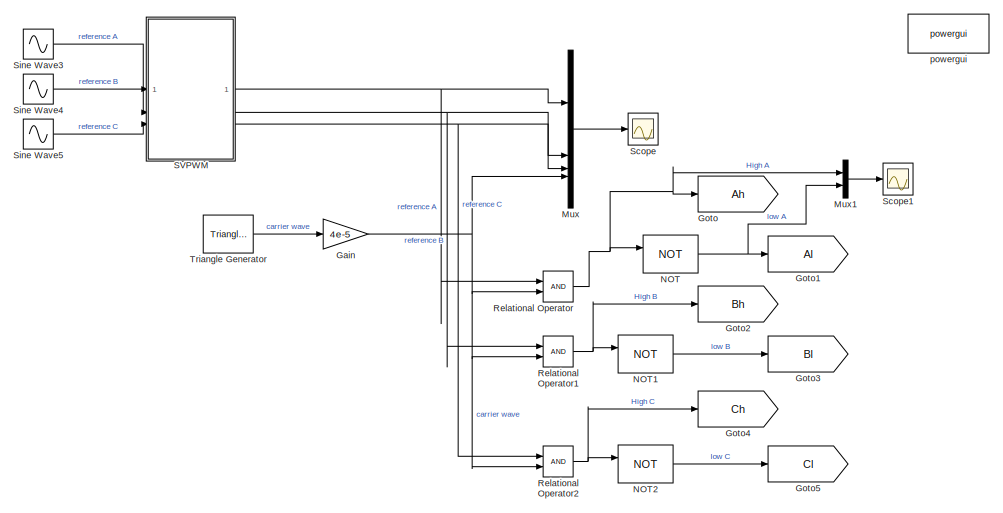
[diagram: root canvas - part 1/2, left side, full height]
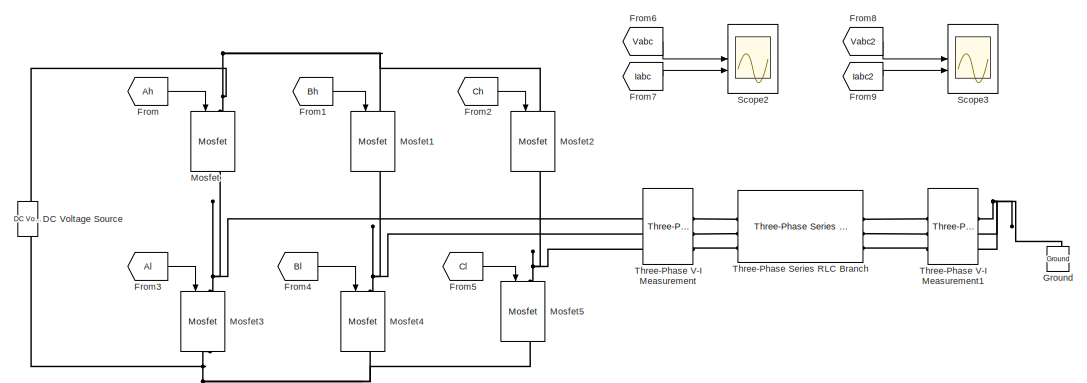
[diagram: root canvas - part 2/2, middle right region]
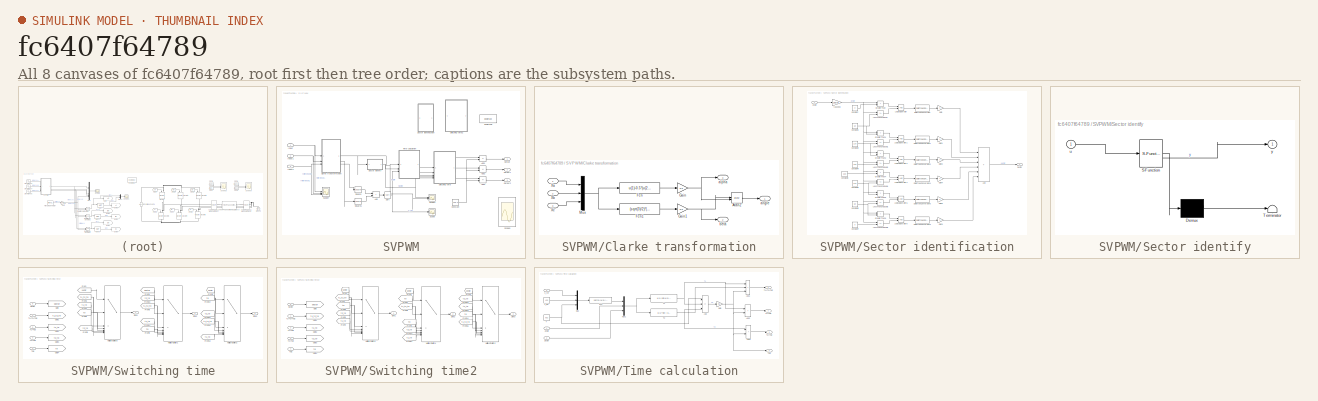
[diagram: thumbnail index - all 8 canvases of the model, root first then tree order]
MODEL slx_fc6407f64789
KIND model
CONFIG AbsTol = auto
CONFIG EnableMultiTasking = off
CONFIG FixedStep = auto
CONFIG MaxStep = 0.0001
CONFIG MinStep = auto
CONFIG RelTol = 1e-3
CONFIG SampleTimeConstraint = Unconstrained
CONFIG SolverName = VariableStepAuto
CONFIG StartTime = 0.0
CONFIG StopTime = 1
BLOCK [Reference] DC Voltage Source  REF=spsDCVoltageSourceLib/DC Voltage Source
  LibrarySourceBlock = sps_lib/Sources/DC Voltage Source
  SourceBlock = spsDCVoltageSourceLib/DC Voltage Source
  SourceType = DC Voltage Source
BLOCK [From] From
  GotoTag = Ah
BLOCK [From] From1
  GotoTag = Bh
BLOCK [From] From2
  GotoTag = Ch
BLOCK [From] From3
  GotoTag = Al
BLOCK [From] From4
  GotoTag = Bl
BLOCK [From] From5
  GotoTag = Cl
BLOCK [From] From6
  GotoTag = Vabc
  TagVisibility = global
BLOCK [From] From7
  GotoTag = Iabc
  TagVisibility = global
BLOCK [From] From8
  GotoTag = Vabc2
  TagVisibility = global
BLOCK [From] From9
  GotoTag = Iabc2
  TagVisibility = global
BLOCK [Gain] Gain
  Gain = 4e-5
BLOCK [Goto] Goto
  GotoTag = Ah
BLOCK [Goto] Goto1
  GotoTag = Al
BLOCK [Goto] Goto2
  GotoTag = Bh
BLOCK [Goto] Goto3
  GotoTag = Bl
BLOCK [Goto] Goto4
  GotoTag = Ch
BLOCK [Goto] Goto5
  GotoTag = Cl
BLOCK [Reference] Ground  REF=spsGroundLib/Ground
  LibrarySourceBlock = sps_lib/Utilities/Ground
  NameLocation = right
  SourceBlock = spsGroundLib/Ground
  SourceType = Ground
BLOCK [Reference] Mosfet  REF=spsMosfetLib/Mosfet
  LibrarySourceBlock = sps_lib/Power Electronics/Mosfet
  NameLocation = left
  SourceBlock = spsMosfetLib/Mosfet
  SourceType = Mosfet
BLOCK [Reference] Mosfet1  REF=spsMosfetLib/Mosfet
  LibrarySourceBlock = sps_lib/Power Electronics/Mosfet
  NameLocation = left
  SourceBlock = spsMosfetLib/Mosfet
  SourceType = Mosfet
BLOCK [Reference] Mosfet2  REF=spsMosfetLib/Mosfet
  LibrarySourceBlock = sps_lib/Power Electronics/Mosfet
  NameLocation = left
  SourceBlock = spsMosfetLib/Mosfet
  SourceType = Mosfet
BLOCK [Reference] Mosfet3  REF=spsMosfetLib/Mosfet
  LibrarySourceBlock = sps_lib/Power Electronics/Mosfet
  NameLocation = left
  SourceBlock = spsMosfetLib/Mosfet
  SourceType = Mosfet
BLOCK [Reference] Mosfet4  REF=spsMosfetLib/Mosfet
  LibrarySourceBlock = sps_lib/Power Electronics/Mosfet
  NameLocation = left
  SourceBlock = spsMosfetLib/Mosfet
  SourceType = Mosfet
BLOCK [Reference] Mosfet5  REF=spsMosfetLib/Mosfet
  LibrarySourceBlock = sps_lib/Power Electronics/Mosfet
  NameLocation = left
  SourceBlock = spsMosfetLib/Mosfet
  SourceType = Mosfet
BLOCK [Mux] Mux
  DisplayOption = bar
BLOCK [Mux] Mux1
  DisplayOption = bar
  Inputs = 2
BLOCK [Logic] NOT
  AllPortsSameDT = off
  Operator = NOT
  OutDataTypeStr = boolean
BLOCK [Logic] NOT1
  AllPortsSameDT = off
  Operator = NOT
  OutDataTypeStr = boolean
BLOCK [Logic] NOT2
  AllPortsSameDT = off
  Operator = NOT
  OutDataTypeStr = boolean
BLOCK [RelationalOperator] Relational Operator
  InputSameDT = off
  OutDataTypeStr = boolean
  RndMeth = Simplest
BLOCK [RelationalOperator] Relational Operator1
  InputSameDT = off
  OutDataTypeStr = boolean
  RndMeth = Simplest
BLOCK [RelationalOperator] Relational Operator2
  InputSameDT = off
  OutDataTypeStr = boolean
  RndMeth = Simplest
BLOCK [SubSystem] SVPWM
BLOCK [Sum] SVPWM/Add
  IconShape = rectangular
BLOCK [Sum] SVPWM/Add1
  IconShape = rectangular
  Inputs = +-
BLOCK [Sum] SVPWM/Add2
  IconShape = rectangular
  Inputs = +-
BLOCK [Sum] SVPWM/Add3
  IconShape = rectangular
  Inputs = +-
BLOCK [SubSystem] SVPWM/Clarke transformation
  NameLocation = top
BLOCK [Trigonometry] SVPWM/Clarke transformation/Atan2
  Operator = atan2
BLOCK [Fcn] SVPWM/Clarke transformation/Fcn
  Expr = u(1)-0.5*(u(2)+u(3))
BLOCK [Fcn] SVPWM/Clarke transformation/Fcn1
  Expr = (sqrt(3)/2)*(u(2)-u(3))
BLOCK [Gain] SVPWM/Clarke transformation/Gain
  Gain = 2/3
BLOCK [Gain] SVPWM/Clarke transformation/Gain1
  Gain = 2/3
BLOCK [Mux] SVPWM/Clarke transformation/Mux
  DisplayOption = bar
  Inputs = 3
BLOCK [Inport] SVPWM/Clarke transformation/Xa
BLOCK [Inport] SVPWM/Clarke transformation/Xb
  Port = 2
BLOCK [Inport] SVPWM/Clarke transformation/Xc
  Port = 3
BLOCK [Outport] SVPWM/Clarke transformation/alpha
  Port = 3
BLOCK [Outport] SVPWM/Clarke transformation/angle
BLOCK [Outport] SVPWM/Clarke transformation/beta
  Port = 2
BLOCK [Constant] SVPWM/Constant
  Value = 10e-3
BLOCK [Inport] SVPWM/Input
BLOCK [Inport] SVPWM/Input1
  Port = 2
BLOCK [Inport] SVPWM/Input2
  Port = 3
BLOCK [Outport] SVPWM/Output
BLOCK [Outport] SVPWM/Output1
  Port = 2
BLOCK [Outport] SVPWM/Output2
  Port = 3
BLOCK [Scope] SVPWM/Scope
  Floating = off
  NumInputPorts = 1
  ScopeSpecificationString = Simulink.scopes.TimeScopeBlockCfg('CurrentConfiguration', extmgr.ConfigurationSet(extmgr.Configuration('Core','General UI',true),extmgr.Configuration('Core','Source UI',true),extmgr.Configuration('Sources','WiredSimulink',true,'DataLoggingVariableName','ScopeData1'),extmgr.Configuration('Visuals','Time Domain',true,'SerializedDisplays',{struct('MinYLimReal','0.999999999999965','MaxYLimReal','1.000...<+1511ch>
BLOCK [Scope] SVPWM/Scope4
  Floating = off
  NumInputPorts = 2
  ScopeSpecificationString = Simulink.scopes.TimeScopeBlockCfg('CurrentConfiguration', extmgr.ConfigurationSet(extmgr.Configuration('Core','General UI',true),extmgr.Configuration('Core','Source UI',true),extmgr.Configuration('Sources','WiredSimulink',true,'DataLoggingVariableName','ScopeData1'),extmgr.Configuration('Visuals','Time Domain',true,'SerializedDisplays',{struct('MinYLimReal','0.375','MaxYLimReal','6.625','YLabelRea...<+2073ch>
BLOCK [Scope] SVPWM/Scope5
  Floating = off
  NumInputPorts = 3
  ScopeSpecificationString = Simulink.scopes.TimeScopeBlockCfg('CurrentConfiguration', extmgr.ConfigurationSet(extmgr.Configuration('Core','General UI',true),extmgr.Configuration('Core','Source UI',true),extmgr.Configuration('Sources','WiredSimulink',true,'DataLoggingVariableName','ScopeData2'),extmgr.Configuration('Visuals','Time Domain',true,'SerializedDisplays',{struct('MinYLimReal','0.00995','MaxYLimReal','0.01005','YLabe...<+1662ch>
BLOCK [Scope] SVPWM/Scope7
  Floating = off
  NumInputPorts = 3
  ScopeSpecificationString = Simulink.scopes.TimeScopeBlockCfg('CurrentConfiguration', extmgr.ConfigurationSet(extmgr.Configuration('Core','General UI',true),extmgr.Configuration('Core','Source UI',true),extmgr.Configuration('Sources','WiredSimulink',true,'DataLoggingVariableName','ScopeData1'),extmgr.Configuration('Visuals','Time Domain',true,'SerializedDisplays',{struct('MinYLimReal','-1.25','MaxYLimReal','1.25','YLabelReal...<+1451ch>
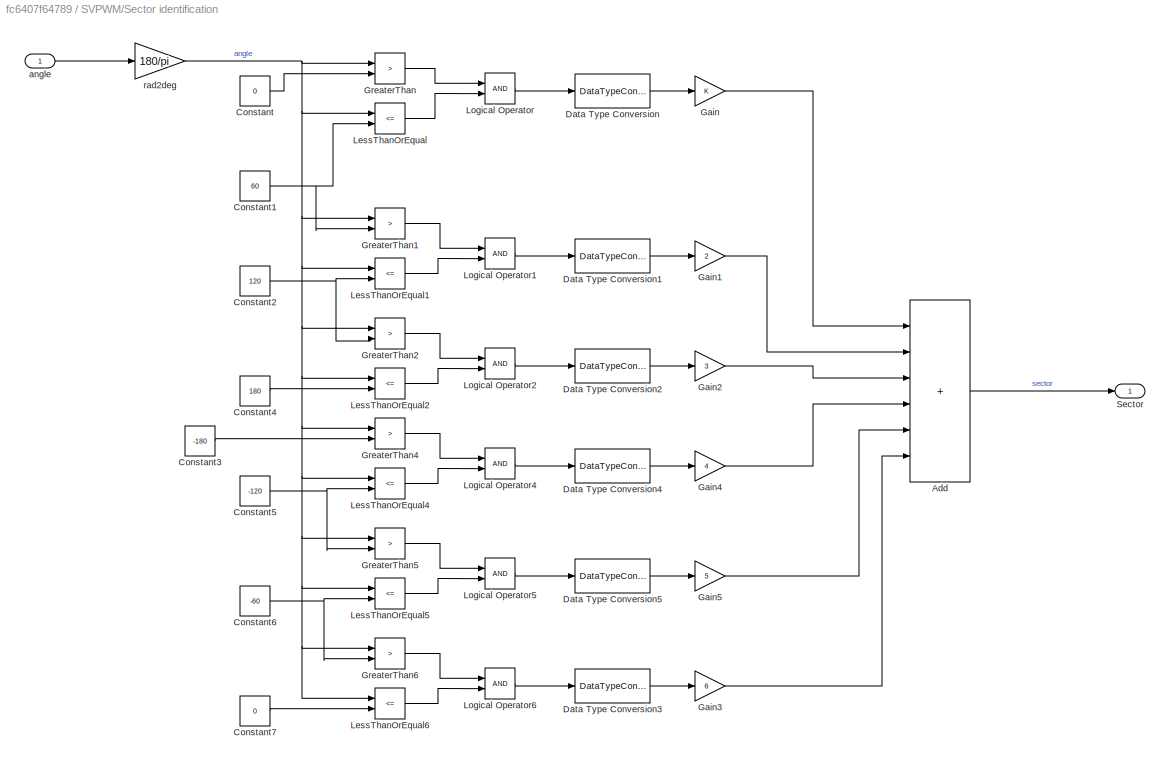
BLOCK [SubSystem] SVPWM/Sector identification
  Commented = on
BLOCK [Sum] SVPWM/Sector identification/Add
  IconShape = rectangular
  Inputs = ++++++
BLOCK [Constant] SVPWM/Sector identification/Constant
  Value = 0
BLOCK [Constant] SVPWM/Sector identification/Constant1
  Value = 60
BLOCK [Constant] SVPWM/Sector identification/Constant2
  Value = 120
BLOCK [Constant] SVPWM/Sector identification/Constant3
  Value = -180
BLOCK [Constant] SVPWM/Sector identification/Constant4
  Value = 180
BLOCK [Constant] SVPWM/Sector identification/Constant5
  Value = -120
BLOCK [Constant] SVPWM/Sector identification/Constant6
  Value = -60
BLOCK [Constant] SVPWM/Sector identification/Constant7
  Value = 0
BLOCK [DataTypeConversion] SVPWM/Sector identification/Data Type Conversion
  RndMeth = Floor
  SaturateOnIntegerOverflow = off
BLOCK [DataTypeConversion] SVPWM/Sector identification/Data Type Conversion1
  RndMeth = Floor
  SaturateOnIntegerOverflow = off
BLOCK [DataTypeConversion] SVPWM/Sector identification/Data Type Conversion2
  RndMeth = Floor
  SaturateOnIntegerOverflow = off
BLOCK [DataTypeConversion] SVPWM/Sector identification/Data Type Conversion3
  RndMeth = Floor
  SaturateOnIntegerOverflow = off
BLOCK [DataTypeConversion] SVPWM/Sector identification/Data Type Conversion4
  RndMeth = Floor
  SaturateOnIntegerOverflow = off
BLOCK [DataTypeConversion] SVPWM/Sector identification/Data Type Conversion5
  RndMeth = Floor
  SaturateOnIntegerOverflow = off
BLOCK [Gain] SVPWM/Sector identification/Gain
BLOCK [Gain] SVPWM/Sector identification/Gain1
  Gain = 2
BLOCK [Gain] SVPWM/Sector identification/Gain2
  Gain = 3
BLOCK [Gain] SVPWM/Sector identification/Gain3
  Gain = 6
BLOCK [Gain] SVPWM/Sector identification/Gain4
  Gain = 4
BLOCK [Gain] SVPWM/Sector identification/Gain5
  Gain = 5
BLOCK [RelationalOperator] SVPWM/Sector identification/GreaterThan
  InputSameDT = off
  Operator = >
  OutDataTypeStr = boolean
  RndMeth = Simplest
BLOCK [RelationalOperator] SVPWM/Sector identification/GreaterThan1
  InputSameDT = off
  Operator = >
  OutDataTypeStr = boolean
  RndMeth = Simplest
BLOCK [RelationalOperator] SVPWM/Sector identification/GreaterThan2
  InputSameDT = off
  Operator = >
  OutDataTypeStr = boolean
  RndMeth = Simplest
BLOCK [RelationalOperator] SVPWM/Sector identification/GreaterThan4
  InputSameDT = off
  Operator = >
  OutDataTypeStr = boolean
  RndMeth = Simplest
BLOCK [RelationalOperator] SVPWM/Sector identification/GreaterThan5
  InputSameDT = off
  Operator = >
  OutDataTypeStr = boolean
  RndMeth = Simplest
BLOCK [RelationalOperator] SVPWM/Sector identification/GreaterThan6
  InputSameDT = off
  Operator = >
  OutDataTypeStr = boolean
  RndMeth = Simplest
BLOCK [RelationalOperator] SVPWM/Sector identification/LessThanOrEqual
  InputSameDT = off
  Operator = <=
  OutDataTypeStr = boolean
  RndMeth = Simplest
BLOCK [RelationalOperator] SVPWM/Sector identification/LessThanOrEqual1
  InputSameDT = off
  Operator = <=
  OutDataTypeStr = boolean
  RndMeth = Simplest
BLOCK [RelationalOperator] SVPWM/Sector identification/LessThanOrEqual2
  InputSameDT = off
  Operator = <=
  OutDataTypeStr = boolean
  RndMeth = Simplest
BLOCK [RelationalOperator] SVPWM/Sector identification/LessThanOrEqual4
  InputSameDT = off
  Operator = <=
  OutDataTypeStr = boolean
  RndMeth = Simplest
BLOCK [RelationalOperator] SVPWM/Sector identification/LessThanOrEqual5
  InputSameDT = off
  Operator = <=
  OutDataTypeStr = boolean
  RndMeth = Simplest
BLOCK [RelationalOperator] SVPWM/Sector identification/LessThanOrEqual6
  InputSameDT = off
  Operator = <=
  OutDataTypeStr = boolean
  RndMeth = Simplest
BLOCK [Logic] SVPWM/Sector identification/Logical Operator
  AllPortsSameDT = off
  OutDataTypeStr = boolean
BLOCK [Logic] SVPWM/Sector identification/Logical Operator1
  AllPortsSameDT = off
  OutDataTypeStr = boolean
BLOCK [Logic] SVPWM/Sector identification/Logical Operator2
  AllPortsSameDT = off
  OutDataTypeStr = boolean
BLOCK [Logic] SVPWM/Sector identification/Logical Operator4
  AllPortsSameDT = off
  OutDataTypeStr = boolean
BLOCK [Logic] SVPWM/Sector identification/Logical Operator5
  AllPortsSameDT = off
  OutDataTypeStr = boolean
BLOCK [Logic] SVPWM/Sector identification/Logical Operator6
  AllPortsSameDT = off
  OutDataTypeStr = boolean
BLOCK [Outport] SVPWM/Sector identification/Sector
BLOCK [Inport] SVPWM/Sector identification/angle
BLOCK [Gain] SVPWM/Sector identification/rad2deg
  Gain = 180/pi
BLOCK [SubSystem] SVPWM/Sector identify
  ErrorFcn = Stateflow.Translate.translate
  LibrarySourceBlock = simulink/User-Defined\nFunctions/MATLAB Function
  PermitHierarchicalResolution = ExplicitOnly
  SFBlockType = MATLAB Function
  TreatAsAtomicUnit = on
BLOCK [Demux] SVPWM/Sector identify/ Demux 
  Outputs = 1
BLOCK [S-Function] SVPWM/Sector identify/ SFunction 
  EnableBusSupport = on
  FunctionName = sf_sfun
  PortCounts = [1 2]
  SFcnIsStateOwnerBlock = off
  SFunctionDeploymentMode = off
  Tag = Stateflow S-Function 2
BLOCK [Terminator] SVPWM/Sector identify/ Terminator 
BLOCK [Inport] SVPWM/Sector identify/u
BLOCK [Outport] SVPWM/Sector identify/y
BLOCK [Sqrt] SVPWM/Sqrt
BLOCK [Math] SVPWM/Square
  Operator = square
BLOCK [Math] SVPWM/Square1
  Operator = square
BLOCK [SubSystem] SVPWM/Switching time
BLOCK [From] SVPWM/Switching time/From
  GotoTag = sector
BLOCK [From] SVPWM/Switching time/From1
  GotoTag = sector
BLOCK [From] SVPWM/Switching time/From10
  GotoTag = t2_t0
BLOCK [From] SVPWM/Switching time/From11
  GotoTag = t1_t0
BLOCK [From] SVPWM/Switching time/From12
  GotoTag = t2_t0
BLOCK [From] SVPWM/Switching time/From13
  GotoTag = t1_t0
BLOCK [From] SVPWM/Switching time/From14
  GotoTag = t0
BLOCK [From] SVPWM/Switching time/From15
  GotoTag = t1_t2_t0
BLOCK [From] SVPWM/Switching time/From2
  GotoTag = sector
BLOCK [From] SVPWM/Switching time/From3
  GotoTag = t1_t2_t0
BLOCK [From] SVPWM/Switching time/From4
  GotoTag = t1_t0
BLOCK [From] SVPWM/Switching time/From5
  GotoTag = t2_t0
BLOCK [From] SVPWM/Switching time/From6
  GotoTag = t0
BLOCK [From] SVPWM/Switching time/From8
  GotoTag = t1_t2_t0
BLOCK [From] SVPWM/Switching time/From9
  GotoTag = t0
BLOCK [Goto] SVPWM/Switching time/Goto
  GotoTag = sector
BLOCK [Goto] SVPWM/Switching time/Goto1
  GotoTag = t1_t2_t0
BLOCK [Goto] SVPWM/Switching time/Goto2
  GotoTag = t1_t0
BLOCK [Goto] SVPWM/Switching time/Goto3
  GotoTag = t2_t0
BLOCK [Goto] SVPWM/Switching time/Goto4
  GotoTag = t0
BLOCK [MultiPortSwitch] SVPWM/Switching time/Multiport Switch1
  DiagnosticForDefault = Warning
  InputSameDT = off
  Inputs = 6
  SaturateOnIntegerOverflow = off
BLOCK [MultiPortSwitch] SVPWM/Switching time/Multiport Switch2
  DiagnosticForDefault = Warning
  InputSameDT = off
  Inputs = 6
  SaturateOnIntegerOverflow = off
BLOCK [MultiPortSwitch] SVPWM/Switching time/Multiport Switch3
  DiagnosticForDefault = Warning
  InputSameDT = off
  Inputs = 6
  SaturateOnIntegerOverflow = off
BLOCK [Inport] SVPWM/Switching time/Sector
  Port = 5
BLOCK [Outport] SVPWM/Switching time/Sine1
BLOCK [Outport] SVPWM/Switching time/Sine2
  Port = 2
BLOCK [Outport] SVPWM/Switching time/Sine3
  Port = 3
BLOCK [Inport] SVPWM/Switching time/T0//2
  Port = 4
BLOCK [Inport] SVPWM/Switching time/T1+T0//2
  Port = 2
BLOCK [Inport] SVPWM/Switching time/T1+T2+T0//2
BLOCK [Inport] SVPWM/Switching time/T2+T0//2
  Port = 3
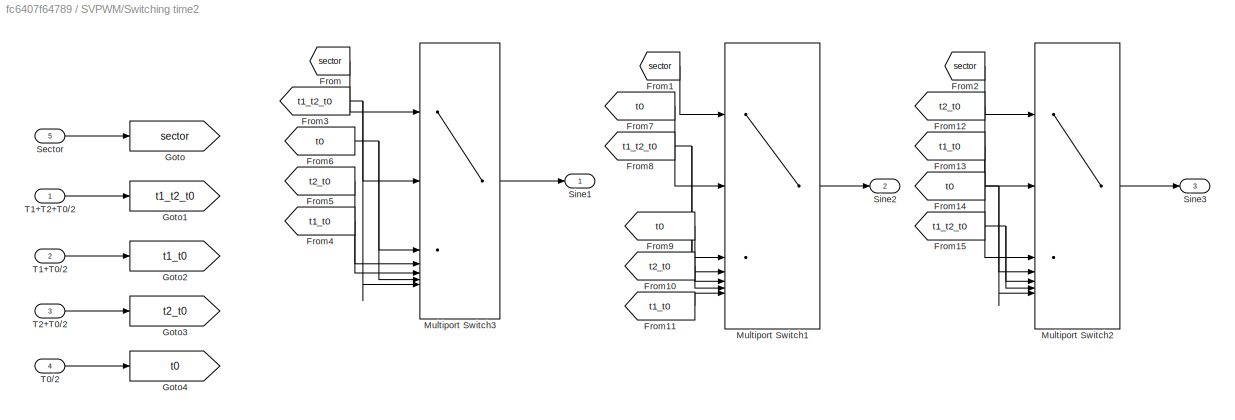
BLOCK [SubSystem] SVPWM/Switching time2
  Commented = on
BLOCK [From] SVPWM/Switching time2/From
  GotoTag = sector
BLOCK [From] SVPWM/Switching time2/From1
  GotoTag = sector
BLOCK [From] SVPWM/Switching time2/From10
  GotoTag = t2_t0
BLOCK [From] SVPWM/Switching time2/From11
  GotoTag = t1_t0
BLOCK [From] SVPWM/Switching time2/From12
  GotoTag = t2_t0
BLOCK [From] SVPWM/Switching time2/From13
  GotoTag = t1_t0
BLOCK [From] SVPWM/Switching time2/From14
  GotoTag = t0
BLOCK [From] SVPWM/Switching time2/From15
  GotoTag = t1_t2_t0
BLOCK [From] SVPWM/Switching time2/From2
  GotoTag = sector
BLOCK [From] SVPWM/Switching time2/From3
  GotoTag = t1_t2_t0
BLOCK [From] SVPWM/Switching time2/From4
  GotoTag = t1_t0
BLOCK [From] SVPWM/Switching time2/From5
  GotoTag = t2_t0
BLOCK [From] SVPWM/Switching time2/From6
  GotoTag = t0
BLOCK [From] SVPWM/Switching time2/From7
  GotoTag = t0
BLOCK [From] SVPWM/Switching time2/From8
  GotoTag = t1_t2_t0
BLOCK [From] SVPWM/Switching time2/From9
  GotoTag = t0
BLOCK [Goto] SVPWM/Switching time2/Goto
  GotoTag = sector
BLOCK [Goto] SVPWM/Switching time2/Goto1
  GotoTag = t1_t2_t0
BLOCK [Goto] SVPWM/Switching time2/Goto2
  GotoTag = t1_t0
BLOCK [Goto] SVPWM/Switching time2/Goto3
  GotoTag = t2_t0
BLOCK [Goto] SVPWM/Switching time2/Goto4
  GotoTag = t0
BLOCK [MultiPortSwitch] SVPWM/Switching time2/Multiport Switch1
  InputSameDT = off
  Inputs = 6
  SaturateOnIntegerOverflow = off
BLOCK [MultiPortSwitch] SVPWM/Switching time2/Multiport Switch2
  InputSameDT = off
  Inputs = 6
  SaturateOnIntegerOverflow = off
BLOCK [MultiPortSwitch] SVPWM/Switching time2/Multiport Switch3
  InputSameDT = off
  Inputs = 6
  SaturateOnIntegerOverflow = off
BLOCK [Inport] SVPWM/Switching time2/Sector
  Port = 5
BLOCK [Outport] SVPWM/Switching time2/Sine1
BLOCK [Outport] SVPWM/Switching time2/Sine2
  Port = 2
BLOCK [Outport] SVPWM/Switching time2/Sine3
  Port = 3
BLOCK [Inport] SVPWM/Switching time2/T0//2
  Port = 4
BLOCK [Inport] SVPWM/Switching time2/T1+T0//2
  Port = 2
BLOCK [Inport] SVPWM/Switching time2/T1+T2+T0//2
BLOCK [Inport] SVPWM/Switching time2/T2+T0//2
  Port = 3
BLOCK [SubSystem] SVPWM/Time calculation
BLOCK [Sum] SVPWM/Time calculation/Add
  IconShape = rectangular
  Inputs = +--
BLOCK [Sum] SVPWM/Time calculation/Add1
  IconShape = rectangular
  Inputs = +++
BLOCK [Sum] SVPWM/Time calculation/Add2
  IconShape = rectangular
BLOCK [Sum] SVPWM/Time calculation/Add3
  IconShape = rectangular
BLOCK [Fcn] SVPWM/Time calculation/Fcn
  Expr = sqrt(3)*u(3)*u(1)/u(2)
BLOCK [Gain] SVPWM/Time calculation/Gain
  Gain = 0.5
BLOCK [Mux] SVPWM/Time calculation/Mux
  DisplayOption = bar
  Inputs = 3
BLOCK [Mux] SVPWM/Time calculation/Mux1
  DisplayOption = bar
  Inputs = 3
BLOCK [Inport] SVPWM/Time calculation/Sector
  Port = 2
BLOCK [Constant] SVPWM/Time calculation/T
  Value = 0.02
BLOCK [Outport] SVPWM/Time calculation/T0//2
  Port = 4
BLOCK [Fcn] SVPWM/Time calculation/T1
  Expr = u(1)*sin(u(3)*pi/3 - u(2))
BLOCK [Outport] SVPWM/Time calculation/T1 + T0//2
  Port = 2
BLOCK [Outport] SVPWM/Time calculation/T1 + T2 + T0//2
BLOCK [Fcn] SVPWM/Time calculation/T2
  Expr = u(1)* sin(-(u(3)-1)*pi/3 + u(2))
BLOCK [Outport] SVPWM/Time calculation/T2 + T0//2
  Port = 3
BLOCK [Constant] SVPWM/Time calculation/V_DC
  Value = 400
BLOCK [Inport] SVPWM/Time calculation/V_ref
  Port = 3
BLOCK [Inport] SVPWM/Time calculation/angle
BLOCK [Reference] SVPWM/powergui1  REF=spspowerguiLib/powergui
  Commented = on
  LibrarySourceBlock = sps_lib/powergui
  Priority = 1
  SourceBlock = spspowerguiLib/powergui
  SourceType = PSB option menu block
BLOCK [Scope] Scope
  Floating = off
  NumInputPorts = 1
  ScopeSpecificationString = Simulink.scopes.TimeScopeBlockCfg('CurrentConfiguration', extmgr.ConfigurationSet(extmgr.Configuration('Core','General UI',true),extmgr.Configuration('Core','Source UI',true),extmgr.Configuration('Sources','WiredSimulink',true,'DataLoggingVariableName','ScopeData1'),extmgr.Configuration('Visuals','Time Domain',true,'SerializedDisplays',{struct('MinYLimReal','-0.00005','MaxYLimReal','0.00005','YLab...<+1593ch>
BLOCK [Scope] Scope1
  Floating = off
  NumInputPorts = 1
  ScopeSpecificationString = Simulink.scopes.TimeScopeBlockCfg('CurrentConfiguration', extmgr.ConfigurationSet(extmgr.Configuration('Core','General UI',true),extmgr.Configuration('Core','Source UI',true),extmgr.Configuration('Sources','WiredSimulink',true,'DataLoggingVariableName','ScopeData2'),extmgr.Configuration('Visuals','Time Domain',true,'SerializedDisplays',{struct('MinYLimReal','-0.125','MaxYLimReal','1.125','YLabelRe...<+1478ch>
BLOCK [Scope] Scope2
  Floating = off
  NumInputPorts = 2
  ScopeSpecificationString = Simulink.scopes.TimeScopeBlockCfg('CurrentConfiguration', extmgr.ConfigurationSet(extmgr.Configuration('Core','General UI',true),extmgr.Configuration('Core','Source UI',true),extmgr.Configuration('Sources','WiredSimulink',true,'DataLoggingVariableName','ScopeData3'),extmgr.Configuration('Visuals','Time Domain',true,'SerializedDisplays',{struct('MinYLimReal','-63.44105','MaxYLimReal','69.84076','YL...<+1683ch>
BLOCK [Scope] Scope3
  Floating = off
  NumInputPorts = 2
  ScopeSpecificationString = Simulink.scopes.TimeScopeBlockCfg('CurrentConfiguration', extmgr.ConfigurationSet(extmgr.Configuration('Core','General UI',true),extmgr.Configuration('Core','Source UI',true),extmgr.Configuration('Sources','WiredSimulink',true),extmgr.Configuration('Visuals','Time Domain',true,'SerializedDisplays',{struct('MinYLimReal','-55.43904','MaxYLimReal','55.47775','YLabelReal','','MinYLimMag','0.00000','Ma...<+1483ch>
BLOCK [Sin] Sine Wave3
  Frequency = 2*pi*50
  SampleTime = 0
BLOCK [Sin] Sine Wave4
  Frequency = 2*pi*50
  Phase = 2*pi/3
  SampleTime = 0
BLOCK [Sin] Sine Wave5
  Frequency = 2*pi*50
  Phase = 4*pi/3
  SampleTime = 0
BLOCK [Reference] Three-Phase Series RLC Branch  REF=spsThreePhaseSeriesRLCBranchLib/Three-Phase
Series RLC Branch
  AttributesFormatString = \n
  LibrarySourceBlock = sps_lib/Passives/Three-Phase\nSeries RLC Branch
  SourceBlock = spsThreePhaseSeriesRLCBranchLib/Three-Phase\nSeries RLC Branch
  SourceType = Three-Phase Series RLC Branch
BLOCK [Reference] Three-Phase V-I Measurement  REF=spsThreePhaseVIMeasurementLib/Three-Phase
V-I Measurement
  LibrarySourceBlock = sps_lib/Sensors and Measurements/Three-Phase\nV-I Measurement
  SourceBlock = spsThreePhaseVIMeasurementLib/Three-Phase\nV-I Measurement
  SourceType = Three-Phase VI Measurement
BLOCK [Reference] Three-Phase V-I Measurement1  REF=spsThreePhaseVIMeasurementLib/Three-Phase
V-I Measurement
  LibrarySourceBlock = sps_lib/Sensors and Measurements/Three-Phase\nV-I Measurement
  SourceBlock = spsThreePhaseVIMeasurementLib/Three-Phase\nV-I Measurement
  SourceType = Three-Phase VI Measurement
BLOCK [Reference] Triangle Generator  REF=spsTriangleGeneratorLib/Triangle
Generator
  LibrarySourceBlock = sps_lib/Sources/Signal Generator Sources/Triangle\nGenerator
  SourceBlock = spsTriangleGeneratorLib/Triangle\nGenerator
  SourceType = Triangle Generator
BLOCK [Reference] powergui  REF=spspowerguiLib/powergui
  LibrarySourceBlock = sps_lib/powergui
  Priority = 1
  SourceBlock = spspowerguiLib/powergui
  SourceType = PSB option menu block
LINE From1:1 -> Mosfet1:1
LINE From2:1 -> Mosfet2:1
LINE From3:1 -> Mosfet3:1
LINE From4:1 -> Mosfet4:1
LINE From5:1 -> Mosfet5:1
LINE From6:1 -> Scope2:1
LINE From7:1 -> Scope2:2
LINE From8:1 -> Scope3:1
LINE From9:1 -> Scope3:2
LINE From:1 -> Mosfet:1
NET Gain:1 -> Mux:4, Relational Operator1:2, Relational Operator2:2, Relational Operator:2
LINE Mux1:1 -> Scope1:1
LINE Mux:1 -> Scope:1
LINE NOT1:1 -> Goto3:1
LINE NOT2:1 -> Goto5:1
NET NOT:1 -> Goto1:1, Mux1:2
NET Relational Operator1:1 -> Goto2:1, NOT1:1
NET Relational Operator2:1 -> Goto4:1, NOT2:1
NET Relational Operator:1 -> Goto:1, Mux1:1, NOT:1
LINE SVPWM/Add1:1 -> SVPWM/Output:1
LINE SVPWM/Add2:1 -> SVPWM/Output1:1
LINE SVPWM/Add3:1 -> SVPWM/Output2:1
LINE SVPWM/Add:1 -> SVPWM/Sqrt:1
LINE SVPWM/Clarke transformation/Atan2:1 -> SVPWM/Clarke transformation/angle:1
LINE SVPWM/Clarke transformation/Fcn1:1 -> SVPWM/Clarke transformation/Gain1:1
LINE SVPWM/Clarke transformation/Fcn:1 -> SVPWM/Clarke transformation/Gain:1
NET SVPWM/Clarke transformation/Gain1:1 -> SVPWM/Clarke transformation/Atan2:1, SVPWM/Clarke transformation/beta:1
NET SVPWM/Clarke transformation/Gain:1 -> SVPWM/Clarke transformation/Atan2:2, SVPWM/Clarke transformation/alpha:1
NET SVPWM/Clarke transformation/Mux:1 -> SVPWM/Clarke transformation/Fcn1:1, SVPWM/Clarke transformation/Fcn:1
LINE SVPWM/Clarke transformation/Xa:1 -> SVPWM/Clarke transformation/Mux:1
LINE SVPWM/Clarke transformation/Xb:1 -> SVPWM/Clarke transformation/Mux:2
LINE SVPWM/Clarke transformation/Xc:1 -> SVPWM/Clarke transformation/Mux:3
NET SVPWM/Clarke transformation:1 -> SVPWM/Scope4:2, SVPWM/Sector identify:1, SVPWM/Time calculation:1
LINE SVPWM/Clarke transformation:2 -> SVPWM/Square1:1
LINE SVPWM/Clarke transformation:3 -> SVPWM/Square:1
NET SVPWM/Constant:1 -> SVPWM/Add1:2, SVPWM/Add2:2, SVPWM/Add3:2
NET SVPWM/Input1:1 -> SVPWM/Clarke transformation:2, SVPWM/Scope7:2
NET SVPWM/Input2:1 -> SVPWM/Clarke transformation:3, SVPWM/Scope7:3
NET SVPWM/Input:1 -> SVPWM/Clarke transformation:1, SVPWM/Scope7:1
LINE SVPWM/Sector identification/Add:1 -> SVPWM/Sector identification/Sector:1
NET SVPWM/Sector identification/Constant1:1 -> SVPWM/Sector identification/GreaterThan1:2, SVPWM/Sector identification/LessThanOrEqual:2
NET SVPWM/Sector identification/Constant2:1 -> SVPWM/Sector identification/GreaterThan2:2, SVPWM/Sector identification/LessThanOrEqual1:2
LINE SVPWM/Sector identification/Constant3:1 -> SVPWM/Sector identification/GreaterThan4:2
LINE SVPWM/Sector identification/Constant4:1 -> SVPWM/Sector identification/LessThanOrEqual2:2
NET SVPWM/Sector identification/Constant5:1 -> SVPWM/Sector identification/GreaterThan5:2, SVPWM/Sector identification/LessThanOrEqual4:2
NET SVPWM/Sector identification/Constant6:1 -> SVPWM/Sector identification/GreaterThan6:2, SVPWM/Sector identification/LessThanOrEqual5:2
LINE SVPWM/Sector identification/Constant7:1 -> SVPWM/Sector identification/LessThanOrEqual6:2
LINE SVPWM/Sector identification/Constant:1 -> SVPWM/Sector identification/GreaterThan:2
LINE SVPWM/Sector identification/Data Type Conversion1:1 -> SVPWM/Sector identification/Gain1:1
LINE SVPWM/Sector identification/Data Type Conversion2:1 -> SVPWM/Sector identification/Gain2:1
LINE SVPWM/Sector identification/Data Type Conversion3:1 -> SVPWM/Sector identification/Gain3:1
LINE SVPWM/Sector identification/Data Type Conversion4:1 -> SVPWM/Sector identification/Gain4:1
LINE SVPWM/Sector identification/Data Type Conversion5:1 -> SVPWM/Sector identification/Gain5:1
LINE SVPWM/Sector identification/Data Type Conversion:1 -> SVPWM/Sector identification/Gain:1
LINE SVPWM/Sector identification/Gain1:1 -> SVPWM/Sector identification/Add:2
LINE SVPWM/Sector identification/Gain2:1 -> SVPWM/Sector identification/Add:3
LINE SVPWM/Sector identification/Gain3:1 -> SVPWM/Sector identification/Add:6
LINE SVPWM/Sector identification/Gain4:1 -> SVPWM/Sector identification/Add:4
LINE SVPWM/Sector identification/Gain5:1 -> SVPWM/Sector identification/Add:5
LINE SVPWM/Sector identification/Gain:1 -> SVPWM/Sector identification/Add:1
LINE SVPWM/Sector identification/GreaterThan1:1 -> SVPWM/Sector identification/Logical Operator1:1
LINE SVPWM/Sector identification/GreaterThan2:1 -> SVPWM/Sector identification/Logical Operator2:1
LINE SVPWM/Sector identification/GreaterThan4:1 -> SVPWM/Sector identification/Logical Operator4:1
LINE SVPWM/Sector identification/GreaterThan5:1 -> SVPWM/Sector identification/Logical Operator5:1
LINE SVPWM/Sector identification/GreaterThan6:1 -> SVPWM/Sector identification/Logical Operator6:1
LINE SVPWM/Sector identification/GreaterThan:1 -> SVPWM/Sector identification/Logical Operator:1
LINE SVPWM/Sector identification/LessThanOrEqual1:1 -> SVPWM/Sector identification/Logical Operator1:2
LINE SVPWM/Sector identification/LessThanOrEqual2:1 -> SVPWM/Sector identification/Logical Operator2:2
LINE SVPWM/Sector identification/LessThanOrEqual4:1 -> SVPWM/Sector identification/Logical Operator4:2
LINE SVPWM/Sector identification/LessThanOrEqual5:1 -> SVPWM/Sector identification/Logical Operator5:2
LINE SVPWM/Sector identification/LessThanOrEqual6:1 -> SVPWM/Sector identification/Logical Operator6:2
LINE SVPWM/Sector identification/LessThanOrEqual:1 -> SVPWM/Sector identification/Logical Operator:2
LINE SVPWM/Sector identification/Logical Operator1:1 -> SVPWM/Sector identification/Data Type Conversion1:1
LINE SVPWM/Sector identification/Logical Operator2:1 -> SVPWM/Sector identification/Data Type Conversion2:1
LINE SVPWM/Sector identification/Logical Operator4:1 -> SVPWM/Sector identification/Data Type Conversion4:1
LINE SVPWM/Sector identification/Logical Operator5:1 -> SVPWM/Sector identification/Data Type Conversion5:1
LINE SVPWM/Sector identification/Logical Operator6:1 -> SVPWM/Sector identification/Data Type Conversion3:1
LINE SVPWM/Sector identification/Logical Operator:1 -> SVPWM/Sector identification/Data Type Conversion:1
LINE SVPWM/Sector identification/angle:1 -> SVPWM/Sector identification/rad2deg:1
NET SVPWM/Sector identification/rad2deg:1 -> SVPWM/Sector identification/GreaterThan1:1, SVPWM/Sector identification/GreaterThan2:1, SVPWM/Sector identification/GreaterThan4:1, SVPWM/Sector identification/GreaterThan5:1, SVPWM/Sector identification/GreaterThan6:1, SVPWM/Sector identification/GreaterThan:1, SVPWM/Sector identification/LessThanOrEqual1:1, SVPWM/Sector identification/LessThanOrEqual2:1, SVPWM/Sector identification/LessThanOrEqual4:1, SVPWM/Sector identification/LessThanOrEqual5:1, SVPWM/Sector identification/LessThanOrEqual6:1, SVPWM/Sector identification/LessThanOrEqual:1
NET SVPWM/Sector identify:1 -> SVPWM/Scope4:1, SVPWM/Switching time:5, SVPWM/Time calculation:2
NET SVPWM/Sqrt:1 -> SVPWM/Scope:1, SVPWM/Time calculation:3
LINE SVPWM/Square1:1 -> SVPWM/Add:2
LINE SVPWM/Square:1 -> SVPWM/Add:1
LINE SVPWM/Switching time/From10:1 -> SVPWM/Switching time/Multiport Switch1:2
LINE SVPWM/Switching time/From11:1 -> SVPWM/Switching time/Multiport Switch1:5
LINE SVPWM/Switching time/From12:1 -> SVPWM/Switching time/Multiport Switch2:4
LINE SVPWM/Switching time/From13:1 -> SVPWM/Switching time/Multiport Switch2:7
NET SVPWM/Switching time/From14:1 -> SVPWM/Switching time/Multiport Switch2:2, SVPWM/Switching time/Multiport Switch2:3
NET SVPWM/Switching time/From15:1 -> SVPWM/Switching time/Multiport Switch2:5, SVPWM/Switching time/Multiport Switch2:6
LINE SVPWM/Switching time/From1:1 -> SVPWM/Switching time/Multiport Switch1:1
LINE SVPWM/Switching time/From2:1 -> SVPWM/Switching time/Multiport Switch2:1
NET SVPWM/Switching time/From3:1 -> SVPWM/Switching time/Multiport Switch3:2, SVPWM/Switching time/Multiport Switch3:7
LINE SVPWM/Switching time/From4:1 -> SVPWM/Switching time/Multiport Switch3:3
LINE SVPWM/Switching time/From5:1 -> SVPWM/Switching time/Multiport Switch3:6
NET SVPWM/Switching time/From6:1 -> SVPWM/Switching time/Multiport Switch3:4, SVPWM/Switching time/Multiport Switch3:5
NET SVPWM/Switching time/From8:1 -> SVPWM/Switching time/Multiport Switch1:3, SVPWM/Switching time/Multiport Switch1:4
NET SVPWM/Switching time/From9:1 -> SVPWM/Switching time/Multiport Switch1:6, SVPWM/Switching time/Multiport Switch1:7
LINE SVPWM/Switching time/From:1 -> SVPWM/Switching time/Multiport Switch3:1
LINE SVPWM/Switching time/Multiport Switch1:1 -> SVPWM/Switching time/Sine2:1
LINE SVPWM/Switching time/Multiport Switch2:1 -> SVPWM/Switching time/Sine3:1
LINE SVPWM/Switching time/Multiport Switch3:1 -> SVPWM/Switching time/Sine1:1
LINE SVPWM/Switching time/Sector:1 -> SVPWM/Switching time/Goto:1
LINE SVPWM/Switching time/T0//2:1 -> SVPWM/Switching time/Goto4:1
LINE SVPWM/Switching time/T1+T0//2:1 -> SVPWM/Switching time/Goto2:1
LINE SVPWM/Switching time/T1+T2+T0//2:1 -> SVPWM/Switching time/Goto1:1
LINE SVPWM/Switching time/T2+T0//2:1 -> SVPWM/Switching time/Goto3:1
LINE SVPWM/Switching time2/From10:1 -> SVPWM/Switching time2/Multiport Switch1:6
LINE SVPWM/Switching time2/From11:1 -> SVPWM/Switching time2/Multiport Switch1:7
LINE SVPWM/Switching time2/From12:1 -> SVPWM/Switching time2/Multiport Switch2:2
LINE SVPWM/Switching time2/From13:1 -> SVPWM/Switching time2/Multiport Switch2:3
NET SVPWM/Switching time2/From14:1 -> SVPWM/Switching time2/Multiport Switch2:4, SVPWM/Switching time2/Multiport Switch2:7
NET SVPWM/Switching time2/From15:1 -> SVPWM/Switching time2/Multiport Switch2:5, SVPWM/Switching time2/Multiport Switch2:6
LINE SVPWM/Switching time2/From1:1 -> SVPWM/Switching time2/Multiport Switch1:1
LINE SVPWM/Switching time2/From2:1 -> SVPWM/Switching time2/Multiport Switch2:1
NET SVPWM/Switching time2/From3:1 -> SVPWM/Switching time2/Multiport Switch3:2, SVPWM/Switching time2/Multiport Switch3:7
LINE SVPWM/Switching time2/From4:1 -> SVPWM/Switching time2/Multiport Switch3:5
LINE SVPWM/Switching time2/From5:1 -> SVPWM/Switching time2/Multiport Switch3:4
NET SVPWM/Switching time2/From6:1 -> SVPWM/Switching time2/Multiport Switch3:3, SVPWM/Switching time2/Multiport Switch3:6
LINE SVPWM/Switching time2/From7:1 -> SVPWM/Switching time2/Multiport Switch1:2
NET SVPWM/Switching time2/From8:1 -> SVPWM/Switching time2/Multiport Switch1:3, SVPWM/Switching time2/Multiport Switch1:4
LINE SVPWM/Switching time2/From9:1 -> SVPWM/Switching time2/Multiport Switch1:5
LINE SVPWM/Switching time2/From:1 -> SVPWM/Switching time2/Multiport Switch3:1
LINE SVPWM/Switching time2/Multiport Switch1:1 -> SVPWM/Switching time2/Sine2:1
LINE SVPWM/Switching time2/Multiport Switch2:1 -> SVPWM/Switching time2/Sine3:1
LINE SVPWM/Switching time2/Multiport Switch3:1 -> SVPWM/Switching time2/Sine1:1
LINE SVPWM/Switching time2/Sector:1 -> SVPWM/Switching time2/Goto:1
LINE SVPWM/Switching time2/T0//2:1 -> SVPWM/Switching time2/Goto4:1
LINE SVPWM/Switching time2/T1+T0//2:1 -> SVPWM/Switching time2/Goto2:1
LINE SVPWM/Switching time2/T1+T2+T0//2:1 -> SVPWM/Switching time2/Goto1:1
LINE SVPWM/Switching time2/T2+T0//2:1 -> SVPWM/Switching time2/Goto3:1
LINE SVPWM/Switching time:1 -> SVPWM/Add1:1
LINE SVPWM/Switching time:2 -> SVPWM/Add2:1
LINE SVPWM/Switching time:3 -> SVPWM/Add3:1
LINE SVPWM/Time calculation/Add1:1 -> SVPWM/Time calculation/T1 + T2 + T0//2:1
LINE SVPWM/Time calculation/Add2:1 -> SVPWM/Time calculation/T1 + T0//2:1
LINE SVPWM/Time calculation/Add3:1 -> SVPWM/Time calculation/T2 + T0//2:1
LINE SVPWM/Time calculation/Add:1 -> SVPWM/Time calculation/Gain:1
LINE SVPWM/Time calculation/Fcn:1 -> SVPWM/Time calculation/Mux1:1
NET SVPWM/Time calculation/Gain:1 -> SVPWM/Time calculation/Add1:3, SVPWM/Time calculation/Add2:2, SVPWM/Time calculation/Add3:2, SVPWM/Time calculation/T0//2:1
NET SVPWM/Time calculation/Mux1:1 -> SVPWM/Time calculation/T1:1, SVPWM/Time calculation/T2:1
LINE SVPWM/Time calculation/Mux:1 -> SVPWM/Time calculation/Fcn:1
LINE SVPWM/Time calculation/Sector:1 -> SVPWM/Time calculation/Mux1:3
NET SVPWM/Time calculation/T1:1 -> SVPWM/Time calculation/Add1:1, SVPWM/Time calculation/Add2:1, SVPWM/Time calculation/Add:2
NET SVPWM/Time calculation/T2:1 -> SVPWM/Time calculation/Add1:2, SVPWM/Time calculation/Add3:1, SVPWM/Time calculation/Add:3
NET SVPWM/Time calculation/T:1 -> SVPWM/Time calculation/Add:1, SVPWM/Time calculation/Mux:3
LINE SVPWM/Time calculation/V_DC:1 -> SVPWM/Time calculation/Mux:2
LINE SVPWM/Time calculation/V_ref:1 -> SVPWM/Time calculation/Mux:1
LINE SVPWM/Time calculation/angle:1 -> SVPWM/Time calculation/Mux1:2
LINE SVPWM/Time calculation:1 -> SVPWM/Switching time:1
LINE SVPWM/Time calculation:2 -> SVPWM/Switching time:2
LINE SVPWM/Time calculation:3 -> SVPWM/Switching time:3
LINE SVPWM/Time calculation:4 -> SVPWM/Switching time:4
NET SVPWM:1 -> Mux:1, Relational Operator:1
NET SVPWM:2 -> Mux:2, Relational Operator1:1
NET SVPWM:3 -> Mux:3, Relational Operator2:1
LINE Sine Wave3:1 -> SVPWM:1
LINE Sine Wave4:1 -> SVPWM:2
LINE Sine Wave5:1 -> SVPWM:3
LINE Triangle Generator:1 -> Gain:1
PNET net1: DC Voltage Source:LConn1 -- Mosfet3:RConn1 -- Mosfet4:RConn1 -- Mosfet5:RConn1
PNET net2: DC Voltage Source:RConn1 -- Mosfet1:LConn1 -- Mosfet2:LConn1 -- Mosfet:LConn1
PNET net3: Ground:LConn1 -- Three-Phase V-I Measurement1:RConn1 -- Three-Phase V-I Measurement1:RConn2 -- Three-Phase V-I Measurement1:RConn3
PNET net4: Mosfet1:RConn1 -- Mosfet4:LConn1 -- Three-Phase V-I Measurement:LConn2
PNET net5: Mosfet2:RConn1 -- Mosfet5:LConn1 -- Three-Phase V-I Measurement:LConn3
PNET net6: Mosfet3:LConn1 -- Mosfet:RConn1 -- Three-Phase V-I Measurement:LConn1
PLINE Three-Phase Series RLC Branch:LConn1 -- Three-Phase V-I Measurement:RConn1
PLINE Three-Phase Series RLC Branch:LConn2 -- Three-Phase V-I Measurement:RConn2
PLINE Three-Phase Series RLC Branch:LConn3 -- Three-Phase V-I Measurement:RConn3
PLINE Three-Phase Series RLC Branch:RConn1 -- Three-Phase V-I Measurement1:LConn1
PLINE Three-Phase Series RLC Branch:RConn2 -- Three-Phase V-I Measurement1:LConn2
PLINE Three-Phase Series RLC Branch:RConn3 -- Three-Phase V-I Measurement1:LConn3
note: NET lines group one-source signal fan-out (src -> all destinations, sorted); 1:1 wires keep LINE; PNET lines group multi-terminal physical nets as a canonical sorted terminal list (undirected conserving connections); 2-terminal nets keep the pairwise PLINE form
CHART SVPWM/Sector identify states=1 transitions=1
  STATE_LABEL 'eML_blk_kernel()'
  STATE_LABEL 'SCRIPT:\nfunction y = fcn(u)\n\nu = u* (180/pi);         % rad to degrees\n\nif (u>0) && (u<=60)\n    u=1;\nelseif (u>60) && (u<=120)\n    u=2;\nelseif (u>120) && (u<=180)\n    u=3;\nelseif (u>-180) && (u<=-120)\n    u=4;\nelseif (u>-120) && (u<=-60)\n    u=5;\nelseif (u>-60) && (u<=0)\n    u=6;\nelse\n    u=0;\nend\ny = u;\n'
CHART  states=0 transitions=0
